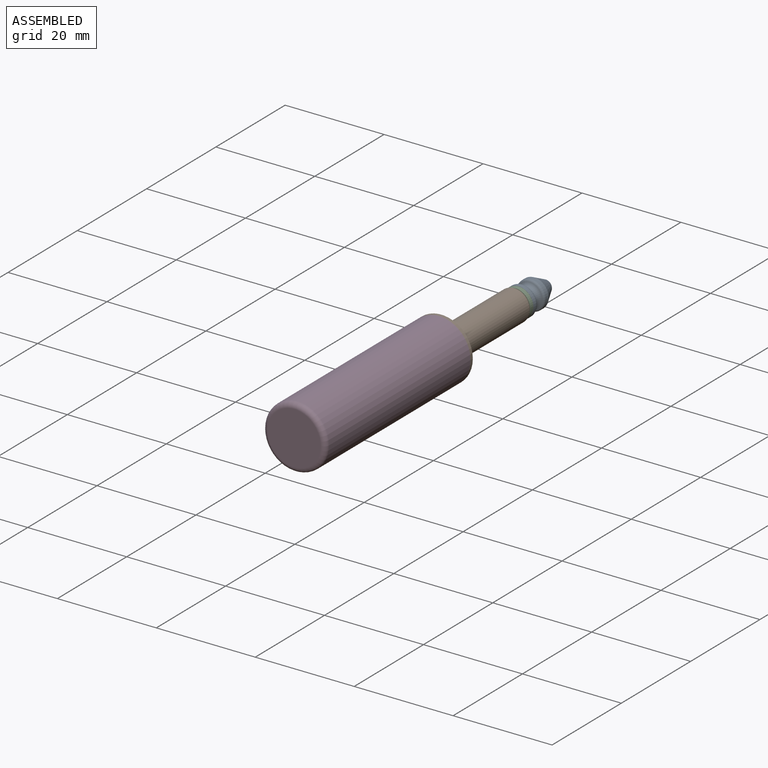
[diagram: assembled view]
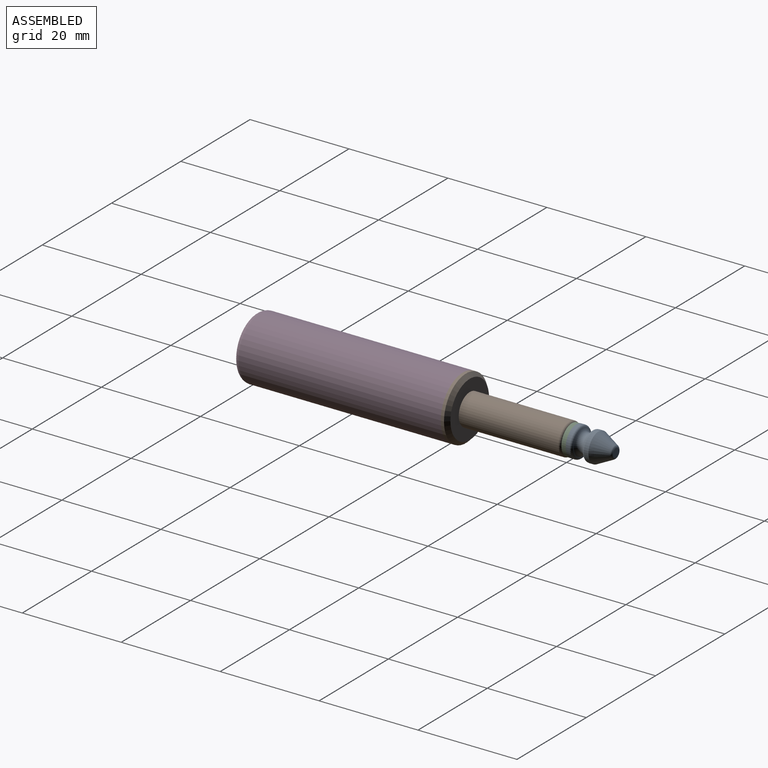
[diagram: assembled view, second angle]
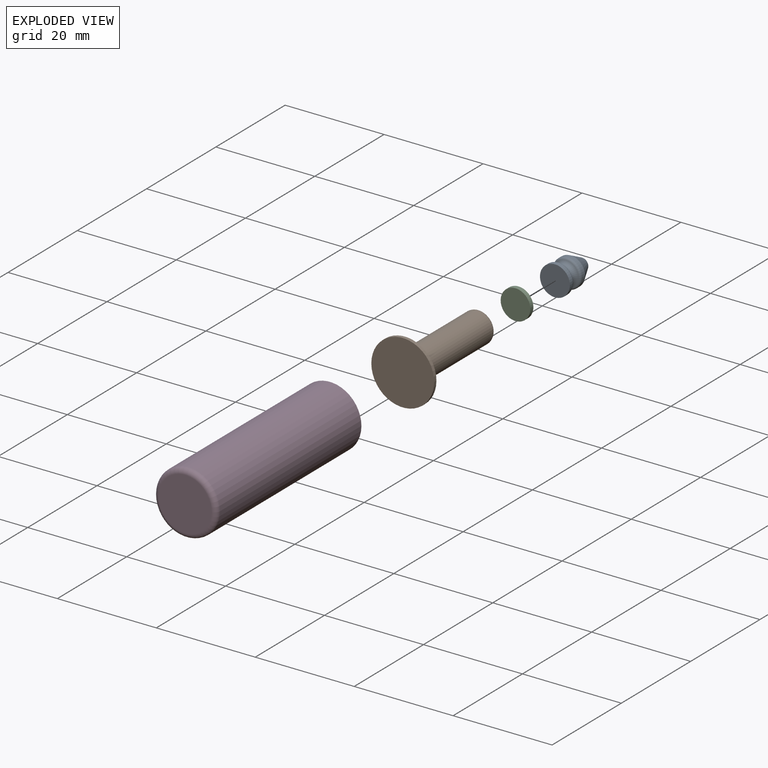
[diagram: exploded view]
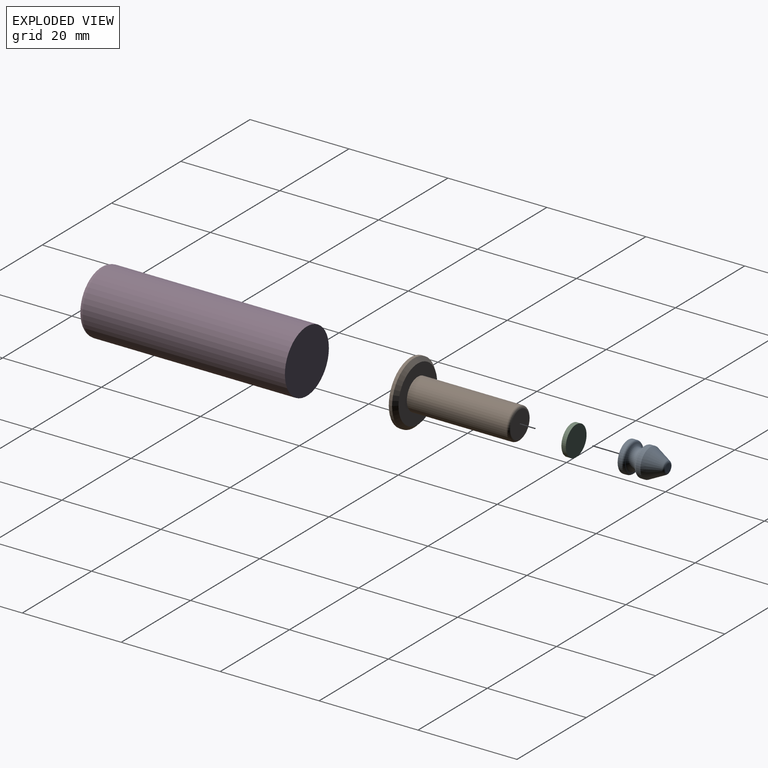
[diagram: exploded view, second angle]
ASSEMBLY  parts=4 mates=3
PART A: 9 faces, bbox 8.1x6.5x6.5 mm
  f0: plane 1.66x1.66mm, normal (1,0,0), area 2.2mm2, adj f6
  f1: cone r=2.92mm half-angle=26.6deg, axis (-1,0,0), area 48.4mm2, adj f2,f6
  f2: cylinder r=2.92mm len=5.84mm, axis (1,0,0), area 15.6mm2, adj f1,f7
  f3: torus R=2.92mm, axis (1,0,0), area 34.8mm2, adj f7,f8
  f4: cylinder r=3.02mm len=6.05mm, axis (1,0,0), area 14.6mm2, adj f5,f8
  f5: plane 6.05x6.05mm, normal (-1,0,0), area 28.7mm2, adj f4
  f6: torus R=0.83mm, axis (-1,0,0), area 3.8mm2, adj f0,f1
  f7: torus R=2.41mm, axis (-1,0,0), area 11mm2, adj f2,f3
  f8: torus R=2.51mm, axis (-1,0,0), area 12mm2, adj f3,f4
PART B: 7 faces, bbox 22x12.7x12.7 mm
  f0: plane 12.7x12.7mm, normal (-1,0,0), area 126.7mm2, adj f4
  f1: plane 5.33x5.33mm, normal (1,0,0), area 22.3mm2, adj f5
  f2: cylinder r=3.17mm len=20.12mm, axis (-1,0,0), area 401.3mm2, adj f3,f5
  f3: plane 11.18x11.18mm, normal (1,0,0), area 66.4mm2, adj f2,f6
  f4: cylinder r=6.35mm len=12.7mm, axis (-1,0,0), area 26.3mm2, adj f0,f6
  f5: torus R=2.67mm, axis (-1,0,0), area 15mm2, adj f1,f2
  f6: cone r=6.35mm half-angle=45deg, axis (-1,0,0), area 40.4mm2, adj f3,f4
PART C: 3 faces, bbox 6x6x0.9 mm
  f0: plane 5.99x5.99mm, normal (0,0,-1), area 28.2mm2, adj f1
  f1: cylinder r=3mm len=5.99mm, axis (0,0,-1), area 16.7mm2, adj f0,f2
  f2: plane 5.99x5.99mm, normal (0,0,1), area 28.2mm2, adj f1
PART D: 4 faces, bbox 13.7x13.7x41.8 mm
  f0: cylinder r=6.35mm len=40.82mm, axis (0,0,-1), area 1628.6mm2, adj f1,f3
  f1: plane 12.7x12.7mm, normal (0,0,1), area 126.7mm2, adj f0
  f2: plane 10.67x10.67mm, normal (0,0,-1), area 89.4mm2, adj f3
  f3: torus R=5.33mm, axis (0,0,1), area 60mm2, adj f0,f2
PLACE A rot(axis=(-0.58,-0.58,0.58),120deg) t=(164.47,11.72,-11.67)mm
PLACE B rot(axis=(-0.58,-0.58,0.58),120deg) t=(197.29,-73.55,-11.67)mm
PLACE C rot(axis=(1,0,0),90deg) t=(43.83,60.57,-11.67)mm
PLACE D rot(axis=(0,0.71,0.71),180deg) t=(118.83,-39.13,-20.98)mm
MATE fastened C.f1 <-> B.f2  axis (0,-1,0) through (165.26,24.75,-11.67)mm
MATE fastened C.f1 <-> A.f1  axis (0,1,0) through (165.26,25.64,-11.67)mm
MATE fastened B.f2 <-> D.f0  axis (0,-1,0) through (165.26,2.7,-11.67)mm
